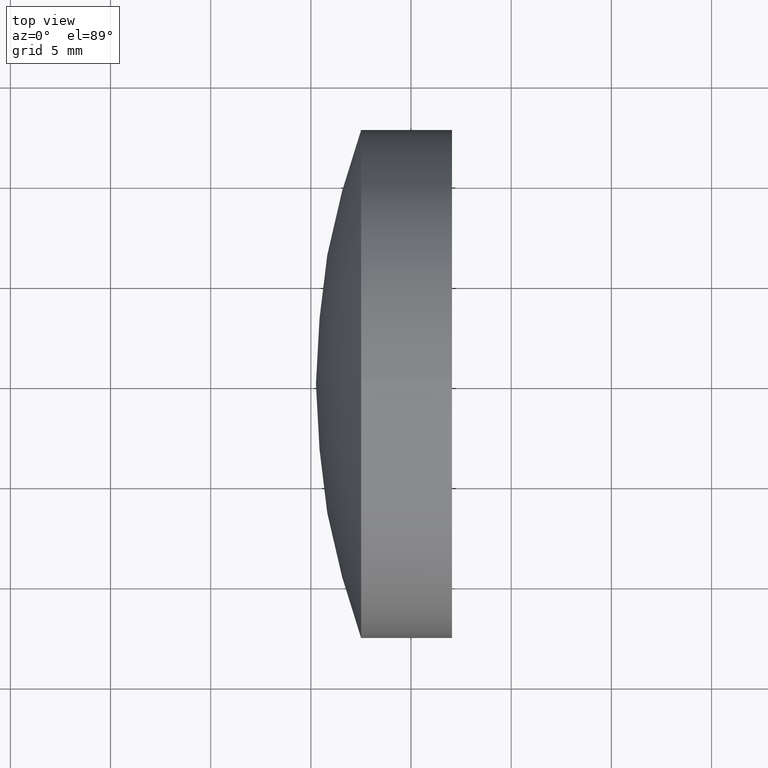
[diagram: clean part render]
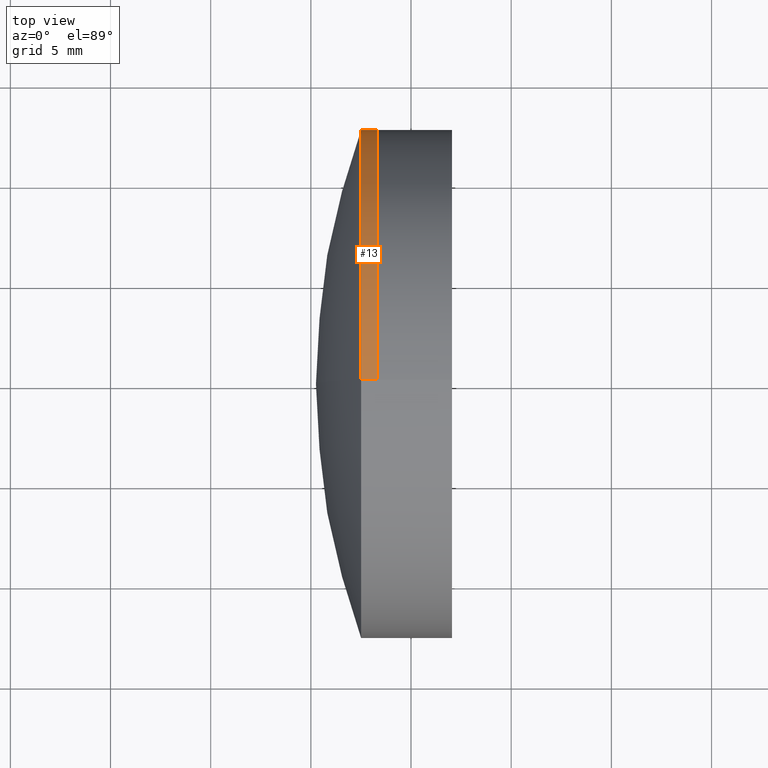
[diagram: same view with one face highlighted and labeled with its STEP entity id]
A machine part, top view. The second image highlights one B-rep face of the part: STEP entity #13.
In plain terms, the highlighted cylindrical surface (partial cylindrical patch) has radius 12.7 mm, axis along (-1, -0, -0).
Its self-contained STEP definition (entity closure, byte-faithful):
#9 = AXIS2_PLACEMENT_3D ( 'NONE', #262, #78, #234 ) ;
#13 = ADVANCED_FACE ( 'NONE', ( #169 ), #95, .T. ) ;
#17 = CARTESIAN_POINT ( 'NONE',  ( 124.5233095260452400, 0.0000000000000000000, 12.70000000000000600 ) ) ;
#29 = EDGE_CURVE ( 'NONE', #60, #182, #166, .T. ) ;
#33 = AXIS2_PLACEMENT_3D ( 'NONE', #236, #207, #52 ) ;
#40 = AXIS2_PLACEMENT_3D ( 'NONE', #184, #162, #186 ) ;
#49 = ORIENTED_EDGE ( 'NONE', *, *, #93, .F. ) ;
#52 = DIRECTION ( 'NONE',  ( 0.0000000000000000000, 0.0000000000000000000, 1.000000000000000000 ) ) ;
#60 = VERTEX_POINT ( 'NONE', #130 ) ;
#78 = DIRECTION ( 'NONE',  ( -1.000000000000000000, -0.0000000000000000000, -0.0000000000000000000 ) ) ;
#89 = VERTEX_POINT ( 'NONE', #284 ) ;
#93 = EDGE_CURVE ( 'NONE', #60, #344, #281, .T. ) ;
#95 = CYLINDRICAL_SURFACE ( 'NONE', #33, 12.70000000000000600 ) ;
#116 = CIRCLE ( 'NONE', #40, 12.70000000000000600 ) ;
#130 = CARTESIAN_POINT ( 'NONE',  ( 303.2964480163323600, 0.0000000000000000000, 12.70000000000000600 ) ) ;
#136 = VECTOR ( 'NONE', #164, 1000.000000000000000 ) ;
#162 = DIRECTION ( 'NONE',  ( -1.000000000000000000, -0.0000000000000000000, -0.0000000000000000000 ) ) ;
#164 = DIRECTION ( 'NONE',  ( -1.000000000000000000, -0.0000000000000000000, -0.0000000000000000000 ) ) ;
#166 = CIRCLE ( 'NONE', #9, 12.70000000000000600 ) ;
#169 = FACE_OUTER_BOUND ( 'NONE', #204, .T. ) ;
#182 = VERTEX_POINT ( 'NONE', #309 ) ;
#184 = CARTESIAN_POINT ( 'NONE',  ( 302.5086398407654000, 0.0000000000000000000, 0.0000000000000000000 ) ) ;
#186 = DIRECTION ( 'NONE',  ( 0.0000000000000000000, 0.0000000000000000000, 1.000000000000000000 ) ) ;
#201 = VECTOR ( 'NONE', #282, 1000.000000000000000 ) ;
#204 = EDGE_LOOP ( 'NONE', ( #264, #311, #209, #49 ) ) ;
#207 = DIRECTION ( 'NONE',  ( -1.000000000000000000, -0.0000000000000000000, -0.0000000000000000000 ) ) ;
#209 = ORIENTED_EDGE ( 'NONE', *, *, #287, .F. ) ;
#213 = CARTESIAN_POINT ( 'NONE',  ( 124.5233095260452400, 1.555301434917139200E-015, -12.70000000000000600 ) ) ;
#233 = LINE ( 'NONE', #213, #136 ) ;
#234 = DIRECTION ( 'NONE',  ( 0.0000000000000000000, 0.0000000000000000000, 1.000000000000000000 ) ) ;
#236 = CARTESIAN_POINT ( 'NONE',  ( 124.5233095260452400, 0.0000000000000000000, 0.0000000000000000000 ) ) ;
#238 = CARTESIAN_POINT ( 'NONE',  ( 302.5086398407654000, -1.555301434917138000E-015, 12.70000000000000500 ) ) ;
#262 = CARTESIAN_POINT ( 'NONE',  ( 303.2964480163323600, 0.0000000000000000000, 0.0000000000000000000 ) ) ;
#264 = ORIENTED_EDGE ( 'NONE', *, *, #29, .T. ) ;
#271 = EDGE_CURVE ( 'NONE', #182, #89, #233, .T. ) ;
#281 = LINE ( 'NONE', #17, #201 ) ;
#282 = DIRECTION ( 'NONE',  ( -1.000000000000000000, -0.0000000000000000000, -0.0000000000000000000 ) ) ;
#284 = CARTESIAN_POINT ( 'NONE',  ( 302.5086398407654000, 0.0000000000000000000, -12.69999999999999800 ) ) ;
#287 = EDGE_CURVE ( 'NONE', #344, #89, #116, .T. ) ;
#309 = CARTESIAN_POINT ( 'NONE',  ( 303.2964480163323600, 1.555301434917139200E-015, -12.70000000000000600 ) ) ;
#311 = ORIENTED_EDGE ( 'NONE', *, *, #271, .T. ) ;
#344 = VERTEX_POINT ( 'NONE', #238 ) ;